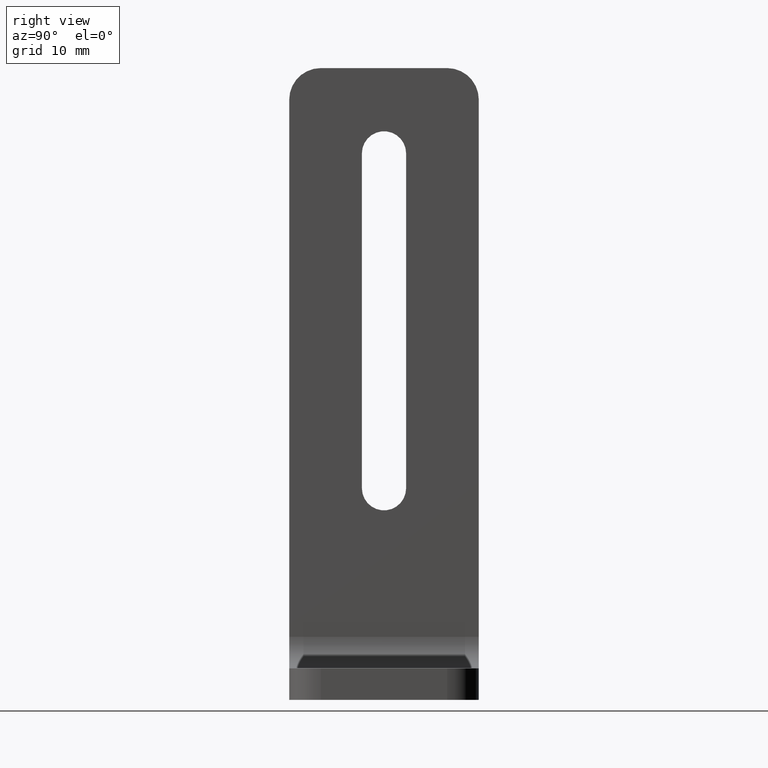
[diagram: clean part render]
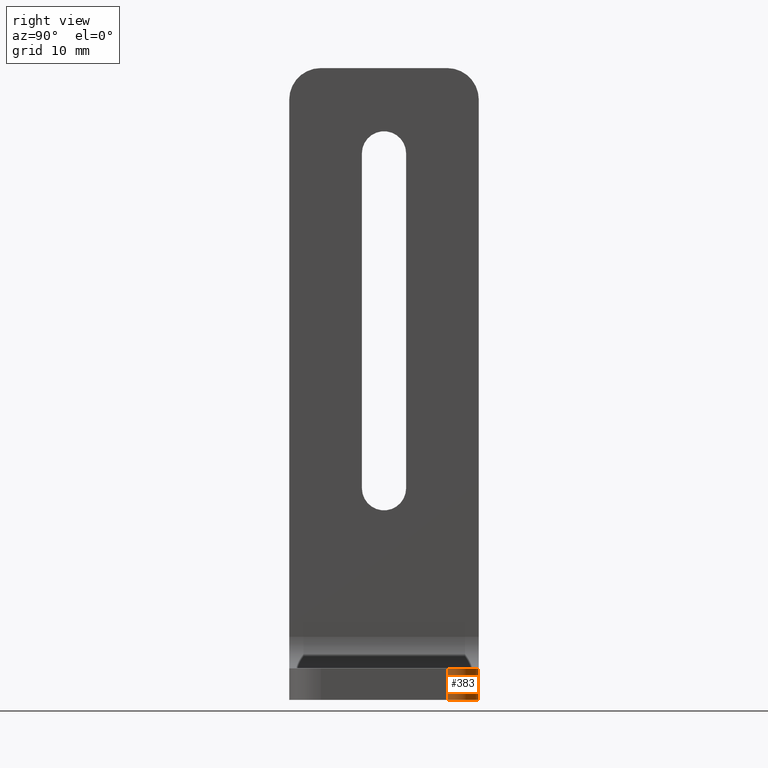
[diagram: same view with one face highlighted and labeled with its STEP entity id]
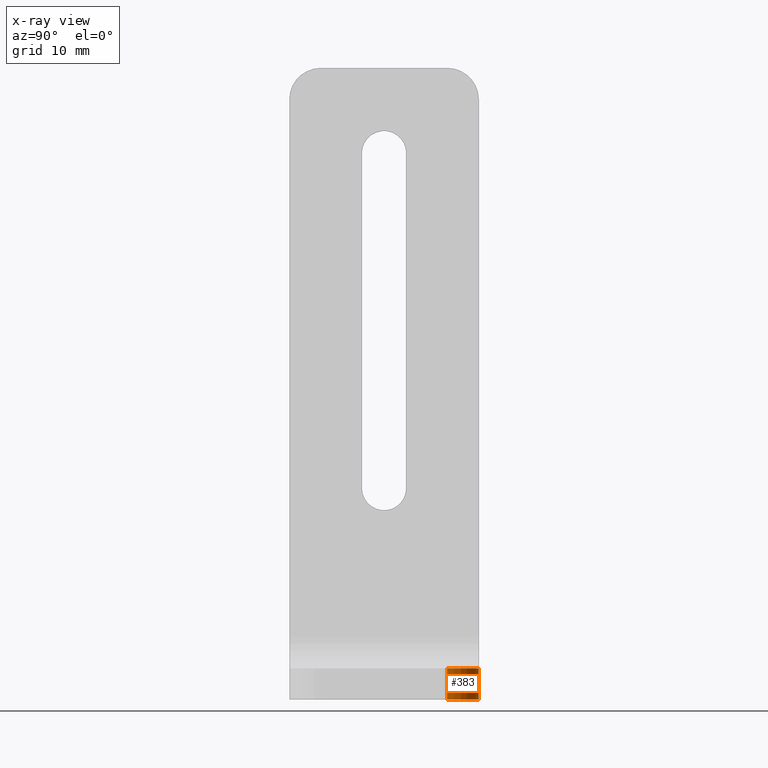
[diagram: x-ray of the same camera — body ghosted, the highlighted face saturated]
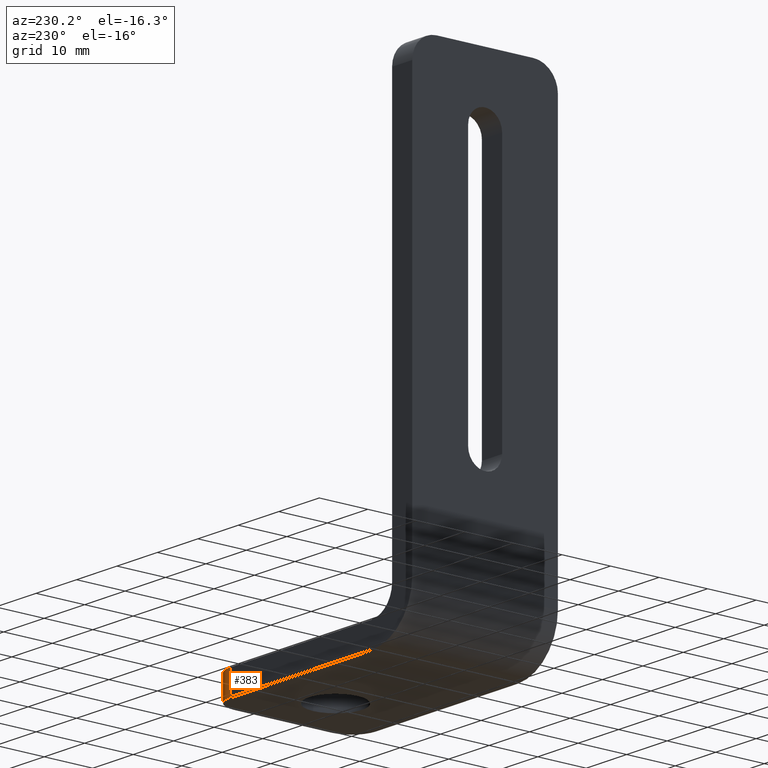
[diagram: same view with one face highlighted and labeled with its STEP entity id]
A machine part, right view. The second image highlights one B-rep face of the part: STEP entity #383.
The next image is the same camera in x-ray: the body ghosted, the highlighted face saturated — about 0% of this face is hidden behind the body in this view.
A second angle (auxiliary view) of the same face is appended — the face is thin or edge-on in the first view.
In plain terms, the highlighted cylindrical surface (edge-blend (fillet) strip) has radius 5 mm, axis along (0, 0, 1).
Its self-contained STEP definition (entity closure, byte-faithful):
#37=FACE_OUTER_BOUND('',#61,.T.);
#61=EDGE_LOOP('',(#278,#279,#280,#281));
#88=LINE('',#580,#124);
#93=LINE('',#595,#129);
#124=VECTOR('',#459,5.);
#129=VECTOR('',#474,5.);
#159=CIRCLE('',#410,5.);
#161=CIRCLE('',#413,5.);
#179=VERTEX_POINT('',#577);
#180=VERTEX_POINT('',#579);
#183=VERTEX_POINT('',#587);
#185=VERTEX_POINT('',#593);
#214=EDGE_CURVE('',#180,#179,#88,.T.);
#219=EDGE_CURVE('',#179,#183,#159,.T.);
#221=EDGE_CURVE('',#185,#180,#161,.T.);
#222=EDGE_CURVE('',#183,#185,#93,.T.);
#278=ORIENTED_EDGE('',*,*,#221,.T.);
#279=ORIENTED_EDGE('',*,*,#214,.T.);
#280=ORIENTED_EDGE('',*,*,#219,.T.);
#281=ORIENTED_EDGE('',*,*,#222,.T.);
#372=CYLINDRICAL_SURFACE('',#412,5.);
#383=ADVANCED_FACE('',(#37),#372,.T.);
#410=AXIS2_PLACEMENT_3D('',#589,#466,#467);
#412=AXIS2_PLACEMENT_3D('',#592,#470,#471);
#413=AXIS2_PLACEMENT_3D('',#594,#472,#473);
#459=DIRECTION('',(0.,0.,-1.));
#466=DIRECTION('center_axis',(0.,0.,1.));
#467=DIRECTION('ref_axis',(0.707106781186547,0.707106781186547,0.));
#470=DIRECTION('center_axis',(0.,0.,1.));
#471=DIRECTION('ref_axis',(0.707106781186547,0.707106781186547,0.));
#472=DIRECTION('center_axis',(0.,0.,-1.));
#473=DIRECTION('ref_axis',(0.707106781186547,0.707106781186547,0.));
#474=DIRECTION('',(0.,0.,1.));
#577=CARTESIAN_POINT('',(25.,10.,0.));
#579=CARTESIAN_POINT('',(25.,10.,5.));
#580=CARTESIAN_POINT('',(25.,10.,0.));
#587=CARTESIAN_POINT('',(20.,15.,0.));
#589=CARTESIAN_POINT('Origin',(20.,10.,0.));
#592=CARTESIAN_POINT('Origin',(20.,10.,0.));
#593=CARTESIAN_POINT('',(20.,15.,5.));
#594=CARTESIAN_POINT('Origin',(20.,10.,5.));
#595=CARTESIAN_POINT('',(20.,15.,0.));